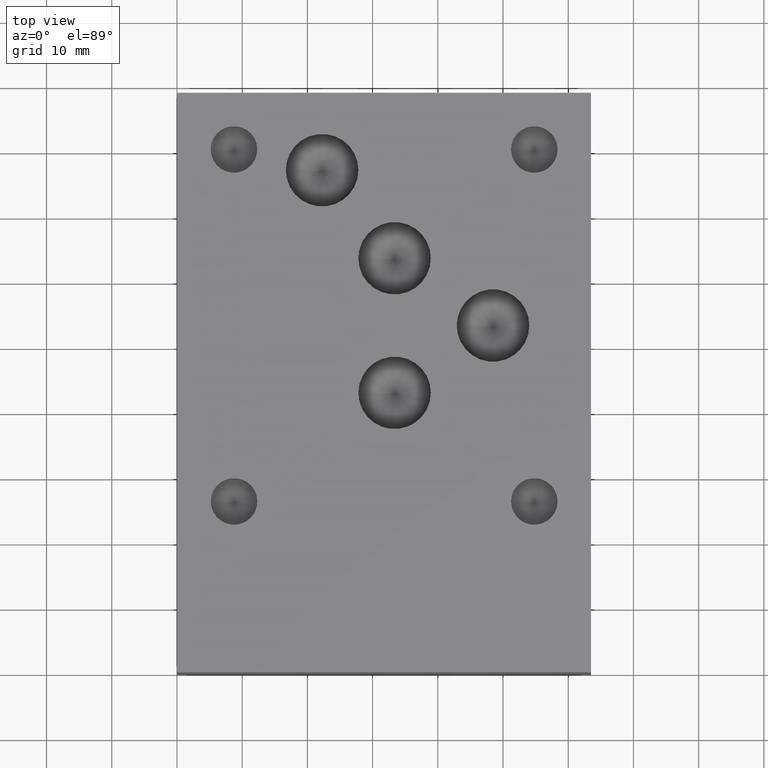
[diagram: clean part render]
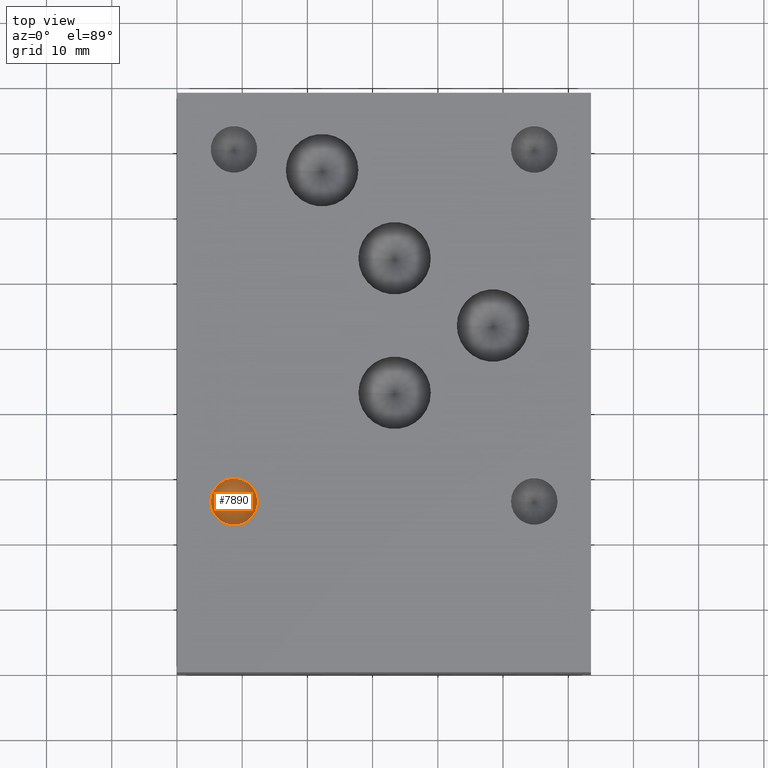
[diagram: same view with one face highlighted and labeled with its STEP entity id]
A machine part, top view. The second image highlights one B-rep face of the part: STEP entity #7890.
In plain terms, the highlighted conical surface has half-angle 60 deg.
Its self-contained STEP definition (entity closure, byte-faithful):
#24=CONICAL_SURFACE('',#8277,1.78435,1.0471975511966);
#90=CIRCLE('',#8278,3.5687);
#91=CIRCLE('',#8279,3.5687);
#828=FACE_OUTER_BOUND('',#1265,.T.);
#1265=EDGE_LOOP('',(#6775,#6776,#6777,#6778));
#2101=LINE('',#13147,#2921);
#2921=VECTOR('',#9835,1.78435);
#3640=VERTEX_POINT('',#13143);
#3641=VERTEX_POINT('',#13144);
#3642=VERTEX_POINT('',#13146);
#4704=EDGE_CURVE('',#3640,#3641,#90,.T.);
#4705=EDGE_CURVE('',#3641,#3642,#2101,.T.);
#4706=EDGE_CURVE('',#3641,#3640,#91,.T.);
#6775=ORIENTED_EDGE('',*,*,#4704,.T.);
#6776=ORIENTED_EDGE('',*,*,#4705,.T.);
#6777=ORIENTED_EDGE('',*,*,#4705,.F.);
#6778=ORIENTED_EDGE('',*,*,#4706,.T.);
#7890=ADVANCED_FACE('',(#828),#24,.F.);
#8277=AXIS2_PLACEMENT_3D('',#13142,#9831,#9832);
#8278=AXIS2_PLACEMENT_3D('',#13145,#9833,#9834);
#8279=AXIS2_PLACEMENT_3D('',#13148,#9836,#9837);
#9831=DIRECTION('center_axis',(0.,0.,1.));
#9832=DIRECTION('ref_axis',(1.,0.,0.));
#9833=DIRECTION('center_axis',(0.,0.,1.));
#9834=DIRECTION('ref_axis',(1.,0.,0.));
#9835=DIRECTION('',(0.866025403784439,1.06057523872491E-16,-0.5));
#9836=DIRECTION('center_axis',(0.,0.,1.));
#9837=DIRECTION('ref_axis',(1.,0.,0.));
#13142=CARTESIAN_POINT('Origin',(8.7503,26.2001,22.3094150471715));
#13143=CARTESIAN_POINT('',(12.319,26.2001,23.33961));
#13144=CARTESIAN_POINT('',(5.1816,26.2001,23.33961));
#13145=CARTESIAN_POINT('Origin',(8.7503,26.2001,23.33961));
#13146=CARTESIAN_POINT('',(8.7503,26.2001,21.279220094343));
#13147=CARTESIAN_POINT('',(6.96595,26.2001,22.3094150471715));
#13148=CARTESIAN_POINT('Origin',(8.7503,26.2001,23.33961));